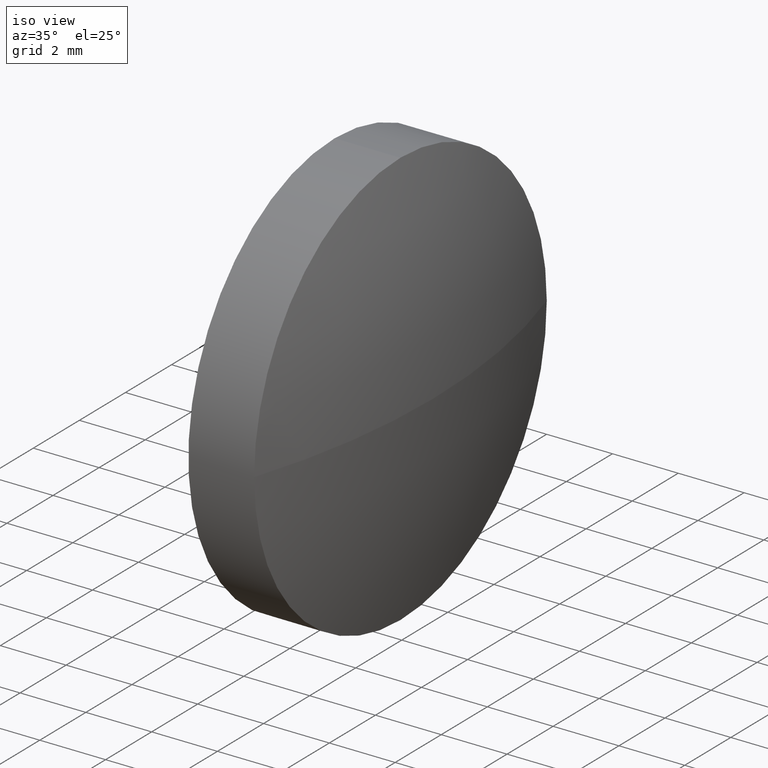
[diagram: clean part render]
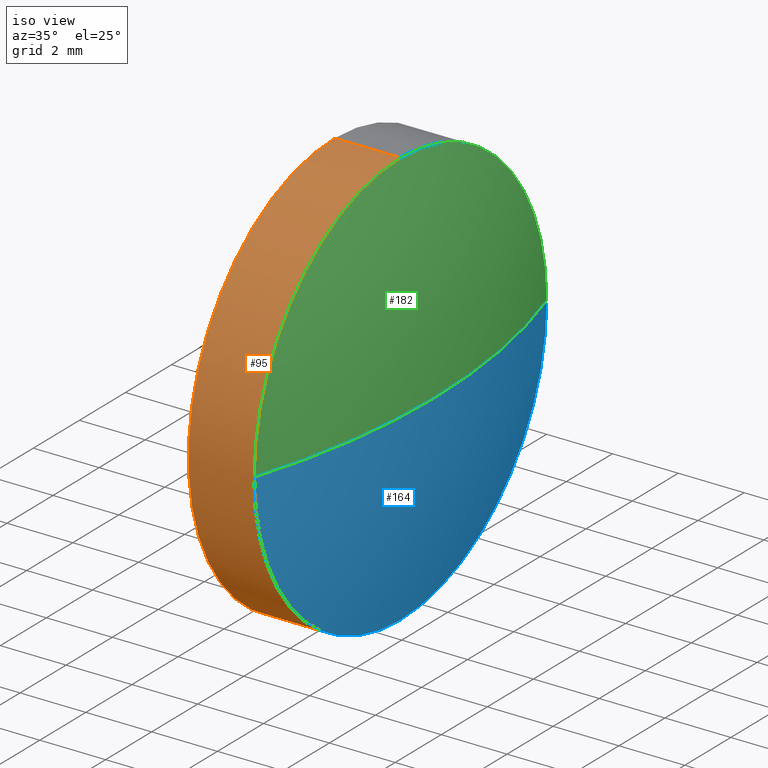
[diagram: same view with three faces highlighted in distinct colors, each labeled with its STEP entity id]
A machine part, iso view with three faces highlighted in distinct colors.
Their STEP definitions:

[orange] entity #95 — the highlighted cylindrical surface (partial cylindrical patch) has radius 6.35 mm, axis along (-1, -0, -0).
#1 = CARTESIAN_POINT ( 'NONE',  ( 233.6334021862494400, 130.4671098528243900, 0.0000000000000000000 ) ) ;
#3 = DIRECTION ( 'NONE',  ( -1.000000000000000000, -0.0000000000000000000, -0.0000000000000000000 ) ) ;
#5 = CYLINDRICAL_SURFACE ( 'NONE', #135, 6.349999999999994300 ) ;
#11 = VERTEX_POINT ( 'NONE', #99 ) ;
#15 = DIRECTION ( 'NONE',  ( -1.000000000000000000, -0.0000000000000000000, -0.0000000000000000000 ) ) ;
#22 = ORIENTED_EDGE ( 'NONE', *, *, #183, .T. ) ;
#30 = DIRECTION ( 'NONE',  ( 0.0000000000000000000, 0.0000000000000000000, 1.000000000000000000 ) ) ;
#35 = LINE ( 'NONE', #174, #113 ) ;
#37 = ORIENTED_EDGE ( 'NONE', *, *, #149, .F. ) ;
#43 = CARTESIAN_POINT ( 'NONE',  ( 231.6334021862494400, 130.4671098528243900, 6.349999999999994300 ) ) ;
#44 = CARTESIAN_POINT ( 'NONE',  ( 231.6334021862494400, 130.4671098528243900, 0.0000000000000000000 ) ) ;
#47 = CARTESIAN_POINT ( 'NONE',  ( 233.6334021862494400, 130.4671098528243900, 0.0000000000000000000 ) ) ;
#48 = VERTEX_POINT ( 'NONE', #104 ) ;
#50 = VECTOR ( 'NONE', #68, 1000.000000000000000 ) ;
#56 = DIRECTION ( 'NONE',  ( -1.000000000000000000, -0.0000000000000000000, -0.0000000000000000000 ) ) ;
#57 = DIRECTION ( 'NONE',  ( 0.0000000000000000000, 0.0000000000000000000, 1.000000000000000000 ) ) ;
#65 = EDGE_CURVE ( 'NONE', #186, #11, #185, .T. ) ;
#68 = DIRECTION ( 'NONE',  ( -1.000000000000000000, -0.0000000000000000000, -0.0000000000000000000 ) ) ;
#72 = CARTESIAN_POINT ( 'NONE',  ( 229.3728710403949800, 130.4671098528243900, 0.0000000000000000000 ) ) ;
#73 = ORIENTED_EDGE ( 'NONE', *, *, #115, .T. ) ;
#80 = CARTESIAN_POINT ( 'NONE',  ( 233.6334021862494400, 130.4671098528243900, -6.349999999999994300 ) ) ;
#84 = CIRCLE ( 'NONE', #118, 6.349999999999994300 ) ;
#95 = ADVANCED_FACE ( 'NONE', ( #150 ), #5, .T. ) ;
#99 = CARTESIAN_POINT ( 'NONE',  ( 231.6334021862494400, 130.4671098528243900, -6.349999999999994300 ) ) ;
#100 = ORIENTED_EDGE ( 'NONE', *, *, #102, .T. ) ;
#102 = EDGE_CURVE ( 'NONE', #48, #106, #35, .T. ) ;
#104 = CARTESIAN_POINT ( 'NONE',  ( 233.6334021862494400, 130.4671098528243900, 6.349999999999994300 ) ) ;
#106 = VERTEX_POINT ( 'NONE', #43 ) ;
#109 = AXIS2_PLACEMENT_3D ( 'NONE', #44, #172, #30 ) ;
#113 = VECTOR ( 'NONE', #130, 1000.000000000000000 ) ;
#115 = EDGE_CURVE ( 'NONE', #186, #162, #143, .T. ) ;
#118 = AXIS2_PLACEMENT_3D ( 'NONE', #47, #3, #159 ) ;
#124 = ORIENTED_EDGE ( 'NONE', *, *, #65, .F. ) ;
#127 = AXIS2_PLACEMENT_3D ( 'NONE', #1, #56, #57 ) ;
#129 = CARTESIAN_POINT ( 'NONE',  ( 233.6334021862494400, 124.1171098528244000, -7.776507174585688200E-016 ) ) ;
#130 = DIRECTION ( 'NONE',  ( -1.000000000000000000, -0.0000000000000000000, -0.0000000000000000000 ) ) ;
#135 = AXIS2_PLACEMENT_3D ( 'NONE', #72, #15, #157 ) ;
#143 = CIRCLE ( 'NONE', #127, 6.349999999999994300 ) ;
#148 = CIRCLE ( 'NONE', #109, 6.349999999999994300 ) ;
#149 = EDGE_CURVE ( 'NONE', #11, #106, #148, .T. ) ;
#150 = FACE_OUTER_BOUND ( 'NONE', #184, .T. ) ;
#157 = DIRECTION ( 'NONE',  ( 0.0000000000000000000, 0.0000000000000000000, 1.000000000000000000 ) ) ;
#159 = DIRECTION ( 'NONE',  ( 0.0000000000000000000, 0.0000000000000000000, 1.000000000000000000 ) ) ;
#162 = VERTEX_POINT ( 'NONE', #129 ) ;
#167 = CARTESIAN_POINT ( 'NONE',  ( 229.3728710403949800, 130.4671098528243900, -6.349999999999994300 ) ) ;
#172 = DIRECTION ( 'NONE',  ( -1.000000000000000000, -0.0000000000000000000, -0.0000000000000000000 ) ) ;
#174 = CARTESIAN_POINT ( 'NONE',  ( 229.3728710403949800, 130.4671098528243900, 6.349999999999994300 ) ) ;
#183 = EDGE_CURVE ( 'NONE', #162, #48, #84, .T. ) ;
#184 = EDGE_LOOP ( 'NONE', ( #124, #73, #22, #100, #37 ) ) ;
#185 = LINE ( 'NONE', #167, #50 ) ;
#186 = VERTEX_POINT ( 'NONE', #80 ) ;

[blue] entity #164 — the highlighted spherical surface has radius 20.6612 mm.
#1 = CARTESIAN_POINT ( 'NONE',  ( 233.6334021862494400, 130.4671098528243900, 0.0000000000000000000 ) ) ;
#9 = VERTEX_POINT ( 'NONE', #152 ) ;
#12 = EDGE_CURVE ( 'NONE', #9, #144, #55, .T. ) ;
#13 = AXIS2_PLACEMENT_3D ( 'NONE', #114, #155, #147 ) ;
#16 = EDGE_CURVE ( 'NONE', #9, #162, #170, .T. ) ;
#26 = DIRECTION ( 'NONE',  ( 1.000000000000000000, 0.0000000000000000000, 0.0000000000000000000 ) ) ;
#31 = ORIENTED_EDGE ( 'NONE', *, *, #16, .T. ) ;
#40 = CARTESIAN_POINT ( 'NONE',  ( 213.9721521862494500, 130.4671098528243900, 0.0000000000000000000 ) ) ;
#52 = AXIS2_PLACEMENT_3D ( 'NONE', #40, #171, #26 ) ;
#55 = CIRCLE ( 'NONE', #52, 20.66124999999999200 ) ;
#56 = DIRECTION ( 'NONE',  ( -1.000000000000000000, -0.0000000000000000000, -0.0000000000000000000 ) ) ;
#57 = DIRECTION ( 'NONE',  ( 0.0000000000000000000, 0.0000000000000000000, 1.000000000000000000 ) ) ;
#67 = DIRECTION ( 'NONE',  ( 0.0000000000000000000, 1.224646799147353200E-016, -1.000000000000000000 ) ) ;
#74 = CARTESIAN_POINT ( 'NONE',  ( 233.6334021862494400, 136.8171098528243900, 0.0000000000000000000 ) ) ;
#80 = CARTESIAN_POINT ( 'NONE',  ( 233.6334021862494400, 130.4671098528243900, -6.349999999999994300 ) ) ;
#86 = DIRECTION ( 'NONE',  ( 0.0000000000000000000, 1.000000000000000000, 1.224646799147353200E-016 ) ) ;
#91 = EDGE_CURVE ( 'NONE', #144, #186, #93, .T. ) ;
#93 = CIRCLE ( 'NONE', #165, 6.349999999999994300 ) ;
#103 = DIRECTION ( 'NONE',  ( -1.000000000000000000, -0.0000000000000000000, -0.0000000000000000000 ) ) ;
#114 = CARTESIAN_POINT ( 'NONE',  ( 213.9721521862494500, 130.4671098528243900, 0.0000000000000000000 ) ) ;
#115 = EDGE_CURVE ( 'NONE', #186, #162, #143, .T. ) ;
#125 = CARTESIAN_POINT ( 'NONE',  ( 213.9721521862494500, 130.4671098528243900, 0.0000000000000000000 ) ) ;
#127 = AXIS2_PLACEMENT_3D ( 'NONE', #1, #56, #57 ) ;
#129 = CARTESIAN_POINT ( 'NONE',  ( 233.6334021862494400, 124.1171098528244000, -7.776507174585688200E-016 ) ) ;
#131 = SPHERICAL_SURFACE ( 'NONE', #13, 20.66124999999999200 ) ;
#133 = FACE_OUTER_BOUND ( 'NONE', #137, .T. ) ;
#137 = EDGE_LOOP ( 'NONE', ( #180, #31, #177, #161 ) ) ;
#142 = DIRECTION ( 'NONE',  ( 0.0000000000000000000, 0.0000000000000000000, 1.000000000000000000 ) ) ;
#143 = CIRCLE ( 'NONE', #127, 6.349999999999994300 ) ;
#144 = VERTEX_POINT ( 'NONE', #74 ) ;
#145 = CARTESIAN_POINT ( 'NONE',  ( 233.6334021862494400, 130.4671098528243900, 0.0000000000000000000 ) ) ;
#147 = DIRECTION ( 'NONE',  ( 0.0000000000000000000, 1.000000000000000000, 0.0000000000000000000 ) ) ;
#152 = CARTESIAN_POINT ( 'NONE',  ( 234.6334021862494400, 130.4671098528243900, 0.0000000000000000000 ) ) ;
#155 = DIRECTION ( 'NONE',  ( -0.0000000000000000000, 0.0000000000000000000, -1.000000000000000000 ) ) ;
#161 = ORIENTED_EDGE ( 'NONE', *, *, #91, .F. ) ;
#162 = VERTEX_POINT ( 'NONE', #129 ) ;
#163 = AXIS2_PLACEMENT_3D ( 'NONE', #125, #67, #86 ) ;
#164 = ADVANCED_FACE ( 'NONE', ( #133 ), #131, .T. ) ;
#165 = AXIS2_PLACEMENT_3D ( 'NONE', #145, #103, #142 ) ;
#170 = CIRCLE ( 'NONE', #163, 20.66124999999999200 ) ;
#171 = DIRECTION ( 'NONE',  ( -0.0000000000000000000, 0.0000000000000000000, 1.000000000000000000 ) ) ;
#177 = ORIENTED_EDGE ( 'NONE', *, *, #115, .F. ) ;
#180 = ORIENTED_EDGE ( 'NONE', *, *, #12, .F. ) ;
#186 = VERTEX_POINT ( 'NONE', #80 ) ;

[green] entity #182 — the highlighted spherical surface has radius 20.6612 mm.
#3 = DIRECTION ( 'NONE',  ( -1.000000000000000000, -0.0000000000000000000, -0.0000000000000000000 ) ) ;
#9 = VERTEX_POINT ( 'NONE', #152 ) ;
#12 = EDGE_CURVE ( 'NONE', #9, #144, #55, .T. ) ;
#16 = EDGE_CURVE ( 'NONE', #9, #162, #170, .T. ) ;
#19 = ORIENTED_EDGE ( 'NONE', *, *, #12, .T. ) ;
#21 = CIRCLE ( 'NONE', #79, 6.349999999999994300 ) ;
#26 = DIRECTION ( 'NONE',  ( 1.000000000000000000, 0.0000000000000000000, 0.0000000000000000000 ) ) ;
#40 = CARTESIAN_POINT ( 'NONE',  ( 213.9721521862494500, 130.4671098528243900, 0.0000000000000000000 ) ) ;
#47 = CARTESIAN_POINT ( 'NONE',  ( 233.6334021862494400, 130.4671098528243900, 0.0000000000000000000 ) ) ;
#48 = VERTEX_POINT ( 'NONE', #104 ) ;
#52 = AXIS2_PLACEMENT_3D ( 'NONE', #40, #171, #26 ) ;
#55 = CIRCLE ( 'NONE', #52, 20.66124999999999200 ) ;
#61 = ORIENTED_EDGE ( 'NONE', *, *, #146, .F. ) ;
#66 = EDGE_LOOP ( 'NONE', ( #96, #19, #61, #81 ) ) ;
#67 = DIRECTION ( 'NONE',  ( 0.0000000000000000000, 1.224646799147353200E-016, -1.000000000000000000 ) ) ;
#74 = CARTESIAN_POINT ( 'NONE',  ( 233.6334021862494400, 136.8171098528243900, 0.0000000000000000000 ) ) ;
#75 = AXIS2_PLACEMENT_3D ( 'NONE', #105, #173, #175 ) ;
#76 = CARTESIAN_POINT ( 'NONE',  ( 233.6334021862494400, 130.4671098528243900, 0.0000000000000000000 ) ) ;
#79 = AXIS2_PLACEMENT_3D ( 'NONE', #76, #89, #90 ) ;
#81 = ORIENTED_EDGE ( 'NONE', *, *, #183, .F. ) ;
#84 = CIRCLE ( 'NONE', #118, 6.349999999999994300 ) ;
#86 = DIRECTION ( 'NONE',  ( 0.0000000000000000000, 1.000000000000000000, 1.224646799147353200E-016 ) ) ;
#89 = DIRECTION ( 'NONE',  ( -1.000000000000000000, -0.0000000000000000000, -0.0000000000000000000 ) ) ;
#90 = DIRECTION ( 'NONE',  ( 0.0000000000000000000, 0.0000000000000000000, 1.000000000000000000 ) ) ;
#96 = ORIENTED_EDGE ( 'NONE', *, *, #16, .F. ) ;
#104 = CARTESIAN_POINT ( 'NONE',  ( 233.6334021862494400, 130.4671098528243900, 6.349999999999994300 ) ) ;
#105 = CARTESIAN_POINT ( 'NONE',  ( 213.9721521862494500, 130.4671098528243900, 0.0000000000000000000 ) ) ;
#117 = SPHERICAL_SURFACE ( 'NONE', #75, 20.66124999999999200 ) ;
#118 = AXIS2_PLACEMENT_3D ( 'NONE', #47, #3, #159 ) ;
#125 = CARTESIAN_POINT ( 'NONE',  ( 213.9721521862494500, 130.4671098528243900, 0.0000000000000000000 ) ) ;
#129 = CARTESIAN_POINT ( 'NONE',  ( 233.6334021862494400, 124.1171098528244000, -7.776507174585688200E-016 ) ) ;
#144 = VERTEX_POINT ( 'NONE', #74 ) ;
#146 = EDGE_CURVE ( 'NONE', #48, #144, #21, .T. ) ;
#152 = CARTESIAN_POINT ( 'NONE',  ( 234.6334021862494400, 130.4671098528243900, 0.0000000000000000000 ) ) ;
#158 = FACE_OUTER_BOUND ( 'NONE', #66, .T. ) ;
#159 = DIRECTION ( 'NONE',  ( 0.0000000000000000000, 0.0000000000000000000, 1.000000000000000000 ) ) ;
#162 = VERTEX_POINT ( 'NONE', #129 ) ;
#163 = AXIS2_PLACEMENT_3D ( 'NONE', #125, #67, #86 ) ;
#170 = CIRCLE ( 'NONE', #163, 20.66124999999999200 ) ;
#171 = DIRECTION ( 'NONE',  ( -0.0000000000000000000, 0.0000000000000000000, 1.000000000000000000 ) ) ;
#173 = DIRECTION ( 'NONE',  ( -0.0000000000000000000, 0.0000000000000000000, -1.000000000000000000 ) ) ;
#175 = DIRECTION ( 'NONE',  ( 0.0000000000000000000, 1.000000000000000000, 0.0000000000000000000 ) ) ;
#182 = ADVANCED_FACE ( 'NONE', ( #158 ), #117, .T. ) ;
#183 = EDGE_CURVE ( 'NONE', #162, #48, #84, .T. ) ;